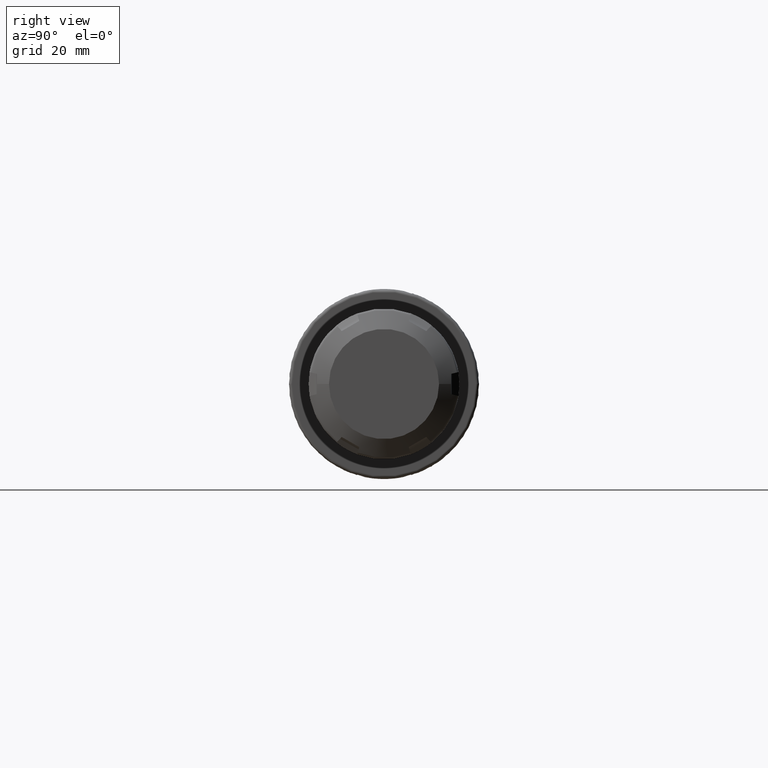
[diagram: clean part render]
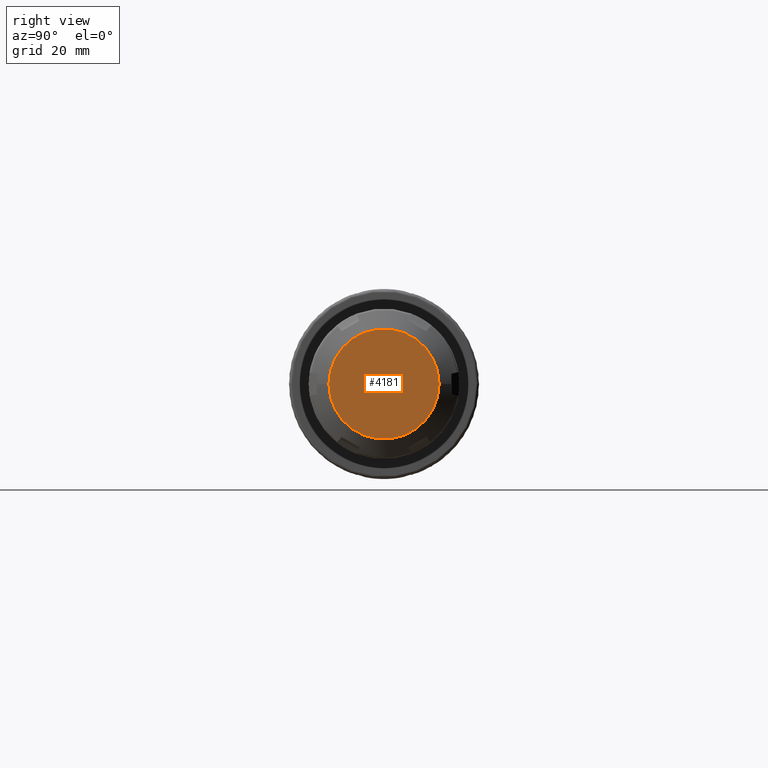
[diagram: same view with one face highlighted and labeled with its STEP entity id]
A machine part, right view. The second image highlights one B-rep face of the part: STEP entity #4181.
In plain terms, the highlighted planar face has unit normal (1, 0, 0).
Its self-contained STEP definition (entity closure, byte-faithful):
#3431=CARTESIAN_POINT('',(2.25E1,0.E0,0.E0));
#3432=DIRECTION('',(-1.E0,0.E0,0.E0));
#3433=DIRECTION('',(0.E0,1.E0,0.E0));
#3434=AXIS2_PLACEMENT_3D('',#3431,#3432,#3433);
#3799=CARTESIAN_POINT('',(2.25E1,0.E0,0.E0));
#3800=DIRECTION('',(1.E0,0.E0,0.E0));
#3801=DIRECTION('',(0.E0,1.E0,0.E0));
#3802=AXIS2_PLACEMENT_3D('',#3799,#3800,#3801);
#4062=CARTESIAN_POINT('',(2.25E1,1.825E1,0.E0));
#4063=CARTESIAN_POINT('',(2.25E1,-1.825E1,0.E0));
#4064=VERTEX_POINT('',#4062);
#4065=VERTEX_POINT('',#4063);
#4170=CARTESIAN_POINT('',(2.25E1,0.E0,0.E0));
#4171=DIRECTION('',(1.E0,0.E0,0.E0));
#4172=DIRECTION('',(0.E0,-1.E0,0.E0));
#4173=AXIS2_PLACEMENT_3D('',#4170,#4171,#4172);
#4174=PLANE('',#4173);
#4176=ORIENTED_EDGE('',*,*,#4175,.T.);
#4178=ORIENTED_EDGE('',*,*,#4177,.F.);
#4179=EDGE_LOOP('',(#4176,#4178));
#4180=FACE_OUTER_BOUND('',#4179,.F.);
#4181=ADVANCED_FACE('',(#4180),#4174,.T.);
#3435=CIRCLE('',#3434,1.825E1);
#3803=CIRCLE('',#3802,1.825E1);
#4175=EDGE_CURVE('',#4064,#4065,#3435,.T.);
#4177=EDGE_CURVE('',#4064,#4065,#3803,.T.);